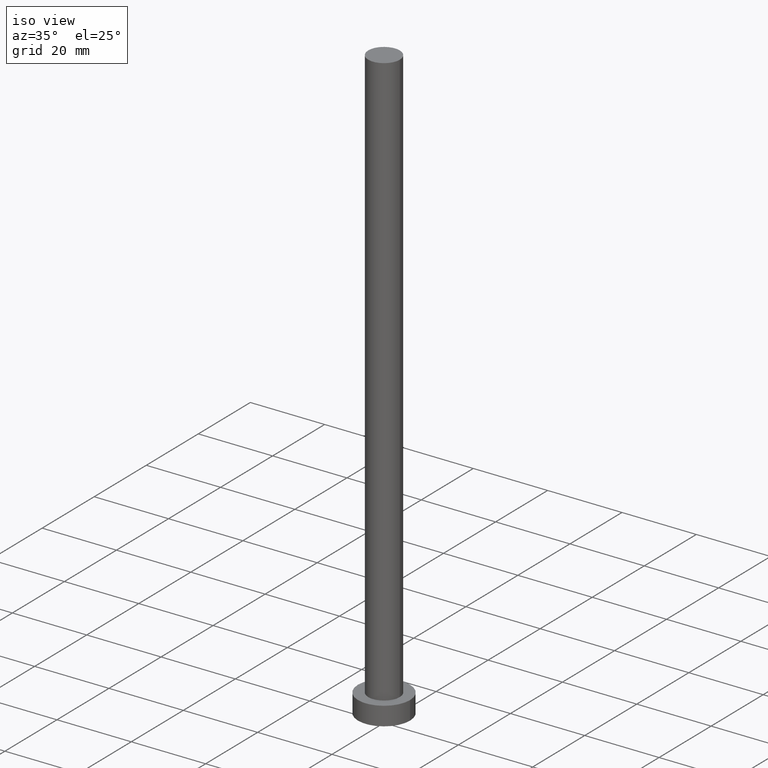
[diagram: clean part render]
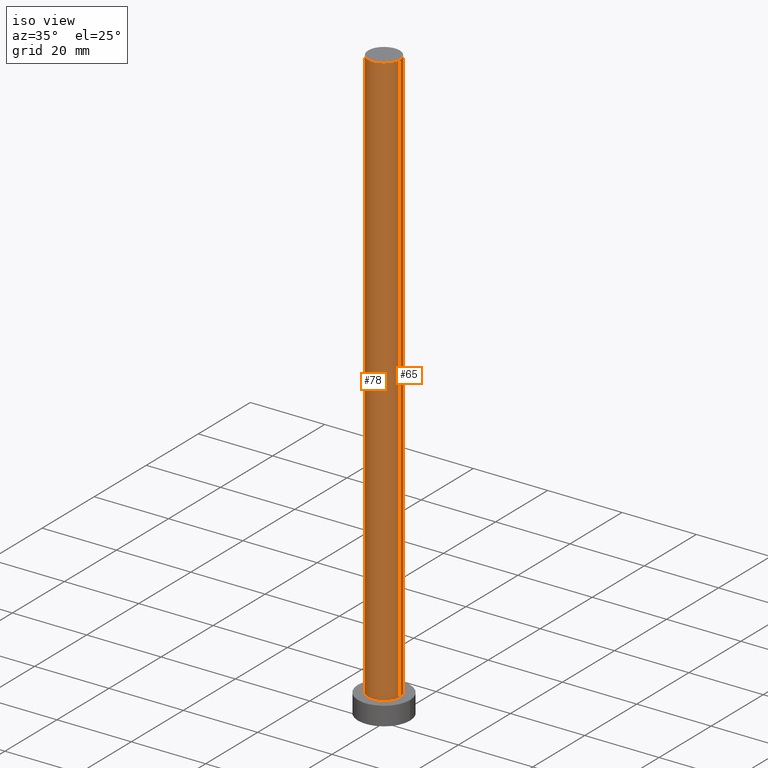
[diagram: same view with one multi-face feature highlighted, each face labeled with its STEP entity id]
A machine part, iso view. The highlighted faces form ONE feature: a constant-radius fillet chain: 2 tangent blend faces with common blend radius 4.25 mm. The faces share edges in the B-rep.
Their STEP definitions:
[1] entity #78 (Cylinder):
#2 = EDGE_CURVE ( 'NONE', #117, #233, #202, .T. ) ;
#7 = VECTOR ( 'NONE', #246, 1000.000000000000000 ) ;
#28 = LINE ( 'NONE', #162, #7 ) ;
#31 = CARTESIAN_POINT ( 'NONE',  ( -4.250000000000000000, 0.000000000000000000, 5.000000000000000000 ) ) ;
#33 = DIRECTION ( 'NONE',  ( -0.000000000000000000, -0.000000000000000000, -1.000000000000000000 ) ) ;
#36 = AXIS2_PLACEMENT_3D ( 'NONE', #80, #230, #152 ) ;
#40 = DIRECTION ( 'NONE',  ( 1.000000000000000000, 0.000000000000000000, 0.000000000000000000 ) ) ;
#45 = FACE_OUTER_BOUND ( 'NONE', #133, .T. ) ;
#49 = EDGE_CURVE ( 'NONE', #195, #135, #164, .T. ) ;
#60 = DIRECTION ( 'NONE',  ( 0.000000000000000000, 0.000000000000000000, 1.000000000000000000 ) ) ;
#70 = CARTESIAN_POINT ( 'NONE',  ( -4.250000000000000000, 0.000000000000000000, 160.0000000000000000 ) ) ;
#78 = ADVANCED_FACE ( 'NONE', ( #45 ), #201, .T. ) ;
#80 = CARTESIAN_POINT ( 'NONE',  ( 0.000000000000000000, 0.000000000000000000, 160.0000000000000000 ) ) ;
#81 = AXIS2_PLACEMENT_3D ( 'NONE', #86, #112, #220 ) ;
#86 = CARTESIAN_POINT ( 'NONE',  ( 0.000000000000000000, 0.000000000000000000, 160.0000000000000000 ) ) ;
#95 = ORIENTED_EDGE ( 'NONE', *, *, #2, .T. ) ;
#112 = DIRECTION ( 'NONE',  ( -0.000000000000000000, -0.000000000000000000, -1.000000000000000000 ) ) ;
#116 = EDGE_CURVE ( 'NONE', #195, #117, #28, .T. ) ;
#117 = VERTEX_POINT ( 'NONE', #31 ) ;
#132 = ORIENTED_EDGE ( 'NONE', *, *, #116, .T. ) ;
#133 = EDGE_LOOP ( 'NONE', ( #150, #238, #132, #95 ) ) ;
#134 = EDGE_CURVE ( 'NONE', #135, #233, #242, .T. ) ;
#135 = VERTEX_POINT ( 'NONE', #157 ) ;
#140 = CARTESIAN_POINT ( 'NONE',  ( 4.250000000000000000, 5.204748896376250699E-16, 160.0000000000000000 ) ) ;
#148 = AXIS2_PLACEMENT_3D ( 'NONE', #174, #60, #40 ) ;
#150 = ORIENTED_EDGE ( 'NONE', *, *, #134, .F. ) ;
#152 = DIRECTION ( 'NONE',  ( 1.000000000000000000, 0.000000000000000000, 0.000000000000000000 ) ) ;
#157 = CARTESIAN_POINT ( 'NONE',  ( 4.250000000000000000, 5.204748896376250699E-16, 160.0000000000000000 ) ) ;
#162 = CARTESIAN_POINT ( 'NONE',  ( -4.250000000000000000, 0.000000000000000000, 160.0000000000000000 ) ) ;
#164 = CIRCLE ( 'NONE', #36, 4.250000000000000000 ) ;
#174 = CARTESIAN_POINT ( 'NONE',  ( 0.000000000000000000, 0.000000000000000000, 5.000000000000000000 ) ) ;
#184 = CARTESIAN_POINT ( 'NONE',  ( 4.250000000000000000, 5.204748896376250699E-16, 5.000000000000000000 ) ) ;
#195 = VERTEX_POINT ( 'NONE', #70 ) ;
#201 = CYLINDRICAL_SURFACE ( 'NONE', #81, 4.250000000000000000 ) ;
#202 = CIRCLE ( 'NONE', #148, 4.250000000000000000 ) ;
#216 = VECTOR ( 'NONE', #33, 1000.000000000000000 ) ;
#220 = DIRECTION ( 'NONE',  ( -1.000000000000000000, 0.000000000000000000, 0.000000000000000000 ) ) ;
#230 = DIRECTION ( 'NONE',  ( 0.000000000000000000, 0.000000000000000000, 1.000000000000000000 ) ) ;
#233 = VERTEX_POINT ( 'NONE', #184 ) ;
#238 = ORIENTED_EDGE ( 'NONE', *, *, #49, .F. ) ;
#242 = LINE ( 'NONE', #140, #216 ) ;
#246 = DIRECTION ( 'NONE',  ( -0.000000000000000000, -0.000000000000000000, -1.000000000000000000 ) ) ;
[2] entity #65 (Cylinder):
#7 = VECTOR ( 'NONE', #246, 1000.000000000000000 ) ;
#8 = DIRECTION ( 'NONE',  ( 1.000000000000000000, 0.000000000000000000, 0.000000000000000000 ) ) ;
#16 = EDGE_CURVE ( 'NONE', #233, #117, #46, .T. ) ;
#25 = CARTESIAN_POINT ( 'NONE',  ( 0.000000000000000000, 0.000000000000000000, 160.0000000000000000 ) ) ;
#28 = LINE ( 'NONE', #162, #7 ) ;
#31 = CARTESIAN_POINT ( 'NONE',  ( -4.250000000000000000, 0.000000000000000000, 5.000000000000000000 ) ) ;
#32 = AXIS2_PLACEMENT_3D ( 'NONE', #25, #146, #125 ) ;
#33 = DIRECTION ( 'NONE',  ( -0.000000000000000000, -0.000000000000000000, -1.000000000000000000 ) ) ;
#41 = ORIENTED_EDGE ( 'NONE', *, *, #16, .T. ) ;
#43 = ORIENTED_EDGE ( 'NONE', *, *, #134, .T. ) ;
#46 = CIRCLE ( 'NONE', #59, 4.250000000000000000 ) ;
#57 = EDGE_LOOP ( 'NONE', ( #190, #43, #41, #169 ) ) ;
#59 = AXIS2_PLACEMENT_3D ( 'NONE', #210, #136, #8 ) ;
#65 = ADVANCED_FACE ( 'NONE', ( #119 ), #236, .T. ) ;
#70 = CARTESIAN_POINT ( 'NONE',  ( -4.250000000000000000, 0.000000000000000000, 160.0000000000000000 ) ) ;
#77 = CIRCLE ( 'NONE', #221, 4.250000000000000000 ) ;
#88 = DIRECTION ( 'NONE',  ( 1.000000000000000000, 0.000000000000000000, 0.000000000000000000 ) ) ;
#94 = EDGE_CURVE ( 'NONE', #135, #195, #77, .T. ) ;
#106 = CARTESIAN_POINT ( 'NONE',  ( 0.000000000000000000, 0.000000000000000000, 160.0000000000000000 ) ) ;
#116 = EDGE_CURVE ( 'NONE', #195, #117, #28, .T. ) ;
#117 = VERTEX_POINT ( 'NONE', #31 ) ;
#119 = FACE_OUTER_BOUND ( 'NONE', #57, .T. ) ;
#125 = DIRECTION ( 'NONE',  ( -1.000000000000000000, 0.000000000000000000, 0.000000000000000000 ) ) ;
#134 = EDGE_CURVE ( 'NONE', #135, #233, #242, .T. ) ;
#135 = VERTEX_POINT ( 'NONE', #157 ) ;
#136 = DIRECTION ( 'NONE',  ( 0.000000000000000000, 0.000000000000000000, 1.000000000000000000 ) ) ;
#140 = CARTESIAN_POINT ( 'NONE',  ( 4.250000000000000000, 5.204748896376250699E-16, 160.0000000000000000 ) ) ;
#146 = DIRECTION ( 'NONE',  ( -0.000000000000000000, -0.000000000000000000, -1.000000000000000000 ) ) ;
#157 = CARTESIAN_POINT ( 'NONE',  ( 4.250000000000000000, 5.204748896376250699E-16, 160.0000000000000000 ) ) ;
#162 = CARTESIAN_POINT ( 'NONE',  ( -4.250000000000000000, 0.000000000000000000, 160.0000000000000000 ) ) ;
#169 = ORIENTED_EDGE ( 'NONE', *, *, #116, .F. ) ;
#184 = CARTESIAN_POINT ( 'NONE',  ( 4.250000000000000000, 5.204748896376250699E-16, 5.000000000000000000 ) ) ;
#190 = ORIENTED_EDGE ( 'NONE', *, *, #94, .F. ) ;
#195 = VERTEX_POINT ( 'NONE', #70 ) ;
#205 = DIRECTION ( 'NONE',  ( 0.000000000000000000, 0.000000000000000000, 1.000000000000000000 ) ) ;
#210 = CARTESIAN_POINT ( 'NONE',  ( 0.000000000000000000, 0.000000000000000000, 5.000000000000000000 ) ) ;
#216 = VECTOR ( 'NONE', #33, 1000.000000000000000 ) ;
#221 = AXIS2_PLACEMENT_3D ( 'NONE', #106, #205, #88 ) ;
#233 = VERTEX_POINT ( 'NONE', #184 ) ;
#236 = CYLINDRICAL_SURFACE ( 'NONE', #32, 4.250000000000000000 ) ;
#242 = LINE ( 'NONE', #140, #216 ) ;
#246 = DIRECTION ( 'NONE',  ( -0.000000000000000000, -0.000000000000000000, -1.000000000000000000 ) ) ;